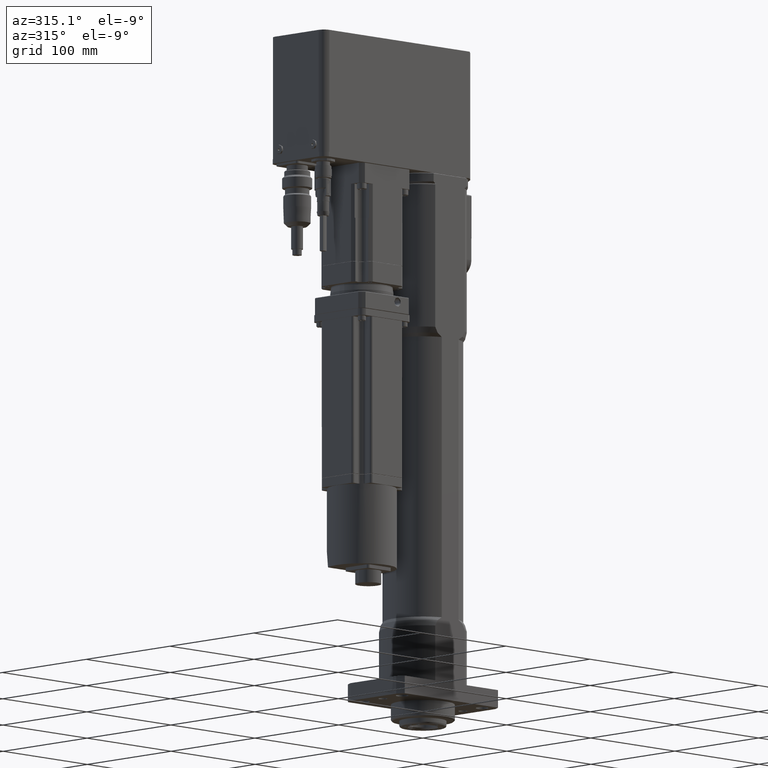
[diagram: clean part render]
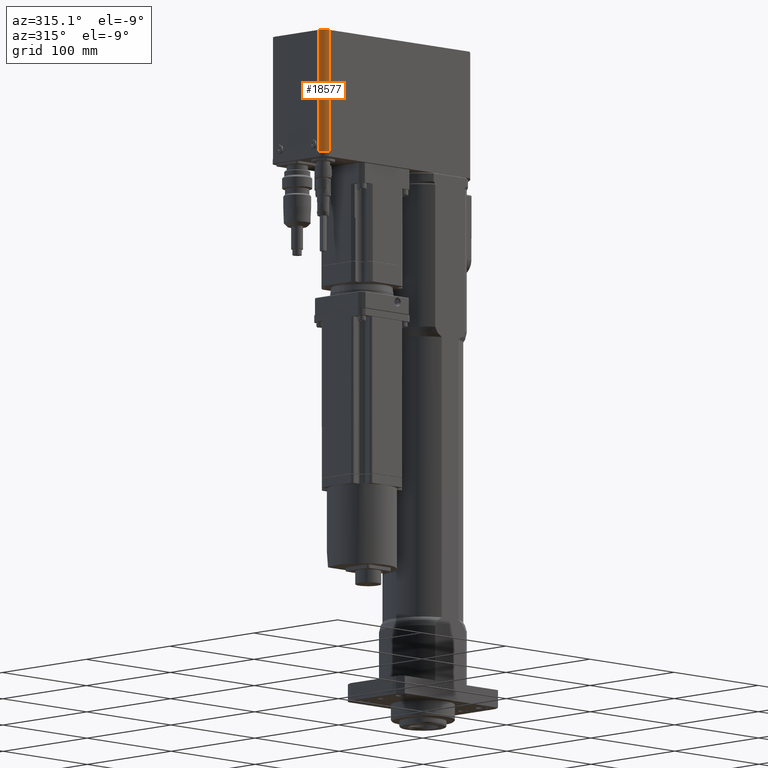
[diagram: same view with one face highlighted and labeled with its STEP entity id]
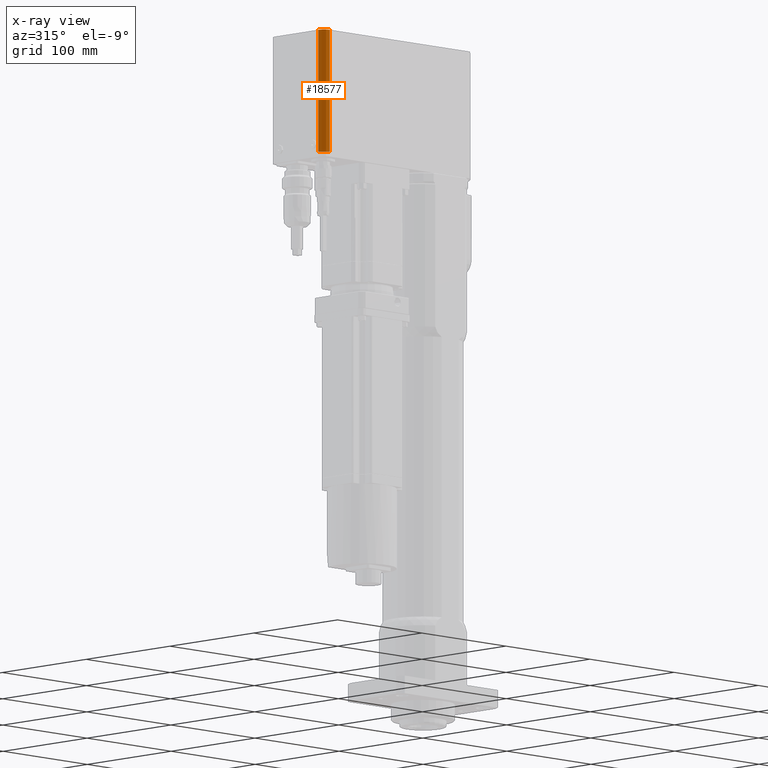
[diagram: x-ray of the same camera — body ghosted, the highlighted face saturated]
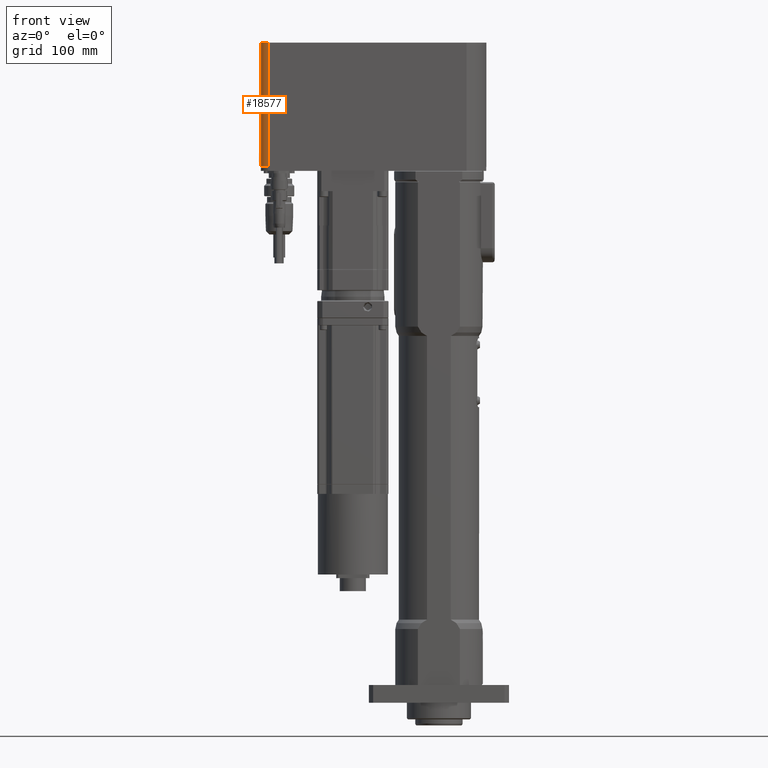
[diagram: same view with one face highlighted and labeled with its STEP entity id]
A machine part, auxiliary view. The second image highlights one B-rep face of the part: STEP entity #18577.
The next image is the same camera in x-ray: the body ghosted, the highlighted face saturated — about 0% of this face is hidden behind the body in this view.
A second angle (front view) of the same face is appended — the face is thin or edge-on in the first view.
In plain terms, the highlighted cylindrical surface (edge-blend (fillet) strip) has radius 6.6 mm, axis along (0, 0, 1).
Its self-contained STEP definition (entity closure, byte-faithful):
#2112=CIRCLE('',#20087,6.6);
#2114=CIRCLE('',#20090,6.6);
#2752=CYLINDRICAL_SURFACE('',#20092,6.6);
#3666=FACE_OUTER_BOUND('',#4909,.T.);
#4909=EDGE_LOOP('',(#14947,#14948,#14949,#14950));
#6256=LINE('',#32268,#7569);
#6263=LINE('',#32288,#7576);
#7569=VECTOR('',#23507,104.);
#7576=VECTOR('',#23524,104.);
#9067=VERTEX_POINT('',#32265);
#9068=VERTEX_POINT('',#32267);
#9075=VERTEX_POINT('',#32285);
#9076=VERTEX_POINT('',#32287);
#11094=EDGE_CURVE('',#9067,#9068,#6256,.T.);
#11104=EDGE_CURVE('',#9076,#9075,#6263,.T.);
#11208=EDGE_CURVE('',#9076,#9067,#2112,.T.);
#11210=EDGE_CURVE('',#9068,#9075,#2114,.T.);
#14947=ORIENTED_EDGE('',*,*,#11208,.F.);
#14948=ORIENTED_EDGE('',*,*,#11104,.T.);
#14949=ORIENTED_EDGE('',*,*,#11210,.F.);
#14950=ORIENTED_EDGE('',*,*,#11094,.F.);
#18577=ADVANCED_FACE('',(#3666),#2752,.T.);
#20087=AXIS2_PLACEMENT_3D('',#32587,#23733,#23734);
#20090=AXIS2_PLACEMENT_3D('',#32590,#23739,#23740);
#20092=AXIS2_PLACEMENT_3D('',#32592,#23743,#23744);
#23507=DIRECTION('',(0.,0.,1.));
#23524=DIRECTION('',(0.,0.,1.));
#23733=DIRECTION('center_axis',(0.,0.,-1.));
#23734=DIRECTION('ref_axis',(-1.,-3.31479051814573E-15,0.));
#23739=DIRECTION('center_axis',(0.,0.,1.));
#23740=DIRECTION('ref_axis',(-1.,-3.31479051814573E-15,0.));
#23743=DIRECTION('center_axis',(0.,0.,1.));
#23744=DIRECTION('ref_axis',(-1.,-3.31479051814573E-15,0.));
#32265=CARTESIAN_POINT('',(-150.,-25.9000000000001,466.));
#32267=CARTESIAN_POINT('',(-150.,-25.9000000000001,570.));
#32268=CARTESIAN_POINT('',(-150.,-25.9000000000001,466.));
#32285=CARTESIAN_POINT('',(-143.4,-32.5000000000001,570.));
#32287=CARTESIAN_POINT('',(-143.4,-32.5000000000001,466.));
#32288=CARTESIAN_POINT('',(-143.4,-32.5000000000001,466.));
#32587=CARTESIAN_POINT('Origin',(-143.4,-25.9,466.));
#32590=CARTESIAN_POINT('Origin',(-143.4,-25.9,570.));
#32592=CARTESIAN_POINT('Origin',(-143.4,-25.9,466.));